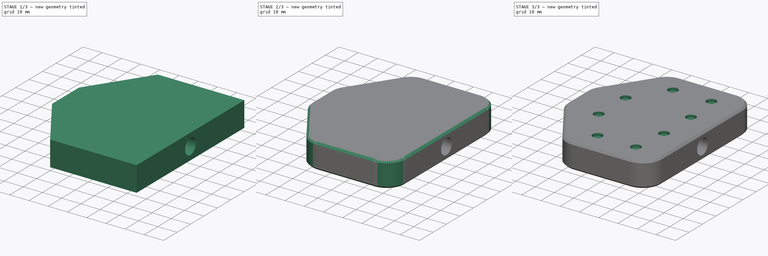
[diagram: build sequence overview — one tinted view per stage of 3, left to right]
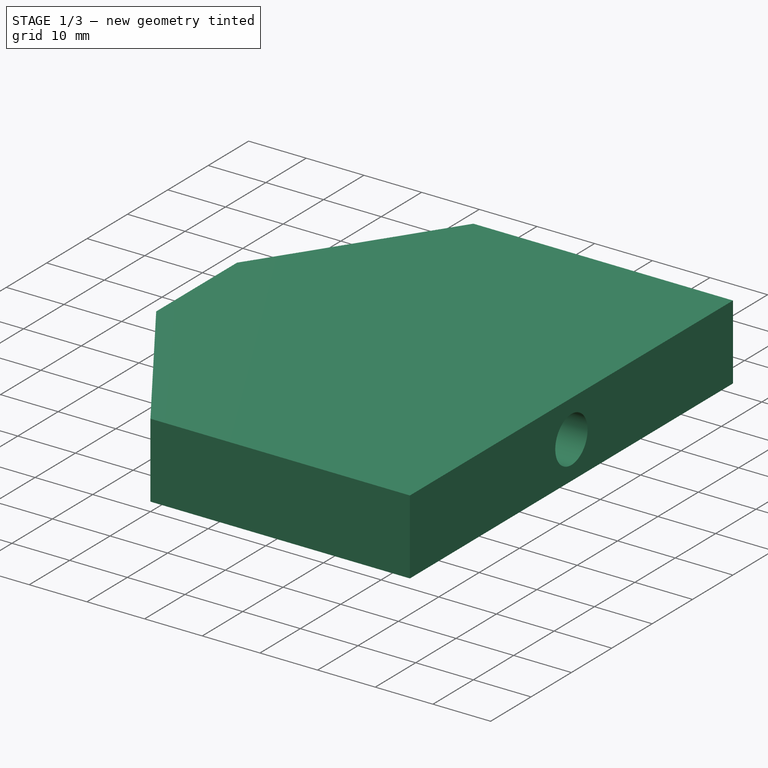
[diagram: stage 1 of 3 — iso view after this stage's code; geometry added in this stage tinted green]
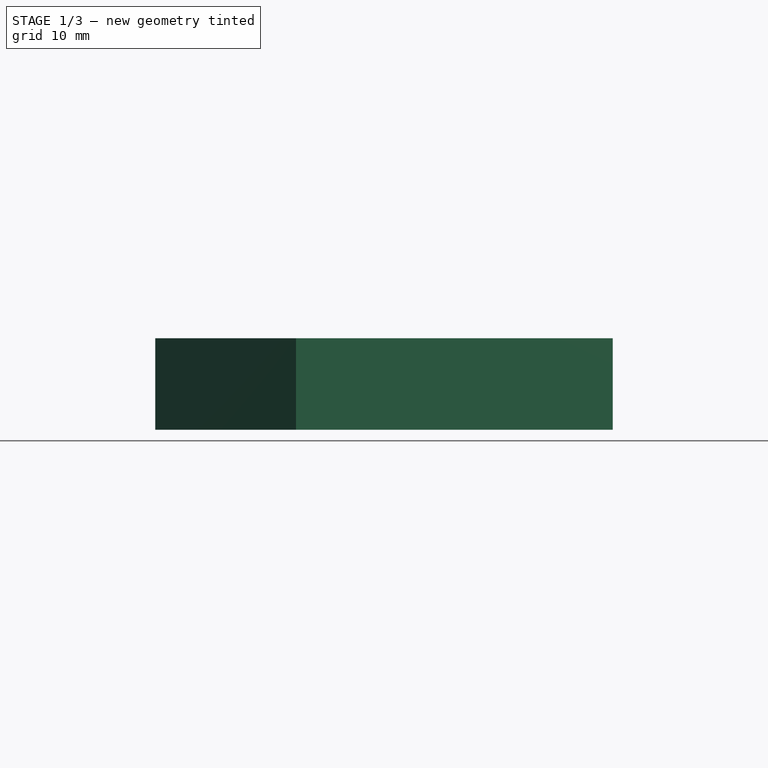
[diagram: stage 1 of 3 — front view after this stage's code; geometry added in this stage tinted green]
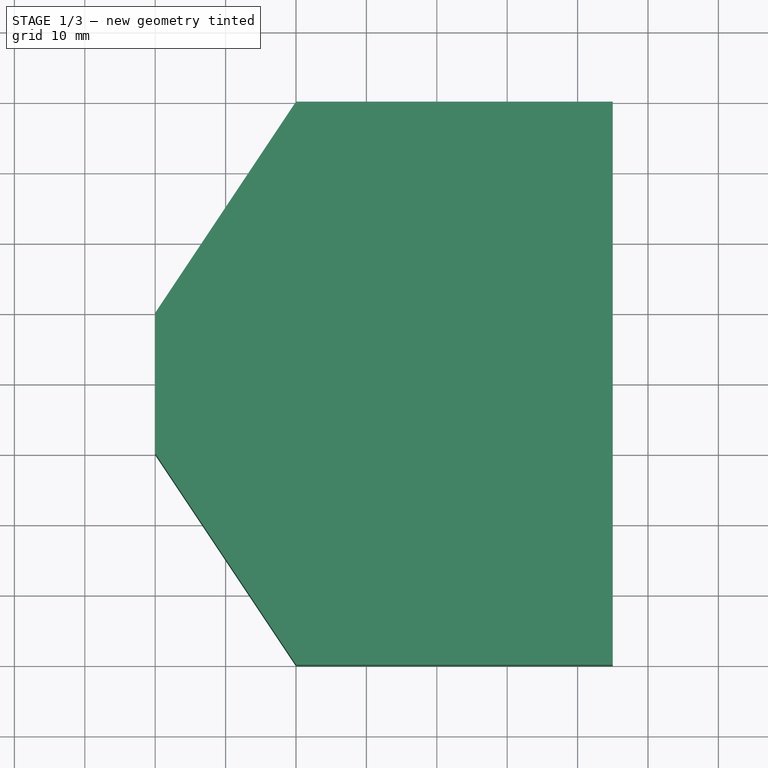
[diagram: stage 1 of 3 — top view after this stage's code; geometry added in this stage tinted green]
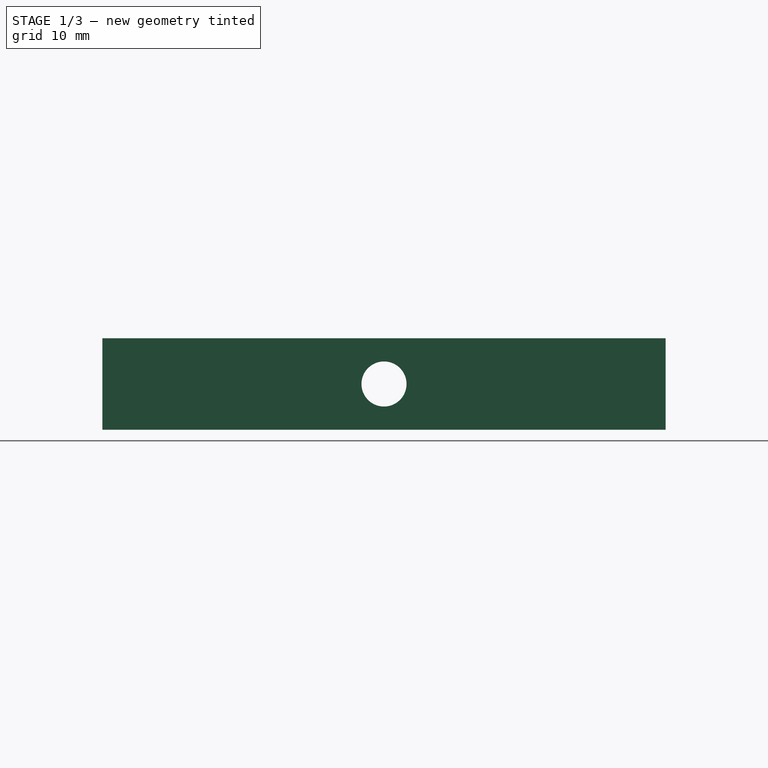
[diagram: stage 1 of 3 — right view after this stage's code; geometry added in this stage tinted green]
FCSTD DOCUMENT  (FreeCAD 0.16R)
Label: Mk1_2
License: All rights reserved
LicenseURL: http://en.wikipedia.org/wiki/All_rights_reserved
objects: Sketcher::SketchObject×6, PartDesign::Pocket×5, PartDesign::Pad×1, PartDesign::Fillet×1, PartDesign::Chamfer×1
note: 20 computed .brp shape members not serialized (recipe doc carries the construction recipe); baked Part::Feature solids carry a one-line shape summary decoded from their .brp

FEATURE [Sketcher::SketchObject] Sketch
  sketch-geometry (7):
    g0: LineSegment StartX=25 StartY=40 StartZ=0 EndX=25 EndY=-40 EndZ=0
    g1: LineSegment StartX=-40 StartY=10 StartZ=0 EndX=-20 EndY=40 EndZ=0
    g2: LineSegment StartX=-20 StartY=40 StartZ=0 EndX=25 EndY=40 EndZ=0
    g3: LineSegment StartX=25 StartY=40 StartZ=0 EndX=25 EndY=-40 EndZ=0
    g4: LineSegment StartX=25 StartY=-40 StartZ=0 EndX=-20 EndY=-40 EndZ=0
    g5: LineSegment StartX=-20 StartY=-40 StartZ=0 EndX=-40 EndY=-10 EndZ=0
    g6: LineSegment StartX=-40 StartY=-10 StartZ=0 EndX=-40 EndY=10 EndZ=0
  constraints (19):
    c: Coincident(g1,g2)
    c: Horizontal(g2)
    c: Coincident(g2,g3)
    c: Coincident(g3,g0)
    c: Vertical(g3)
    c: Coincident(g3,g4)
    c: Horizontal(g4)
    c: Coincident(g4,g5)
    c: Coincident(g5,g6)
    c: Coincident(g0,g2)
    c: Coincident(g1,g6)
    c: Distance(g-1,g0) = 25
    c: DistanceX(g1,g-1) = 20
    c: DistanceX(g1,g-1) = 40
    c: Vertical(g6)
    c: Symmetric(g1,g5,g-1)
    c: Symmetric(g4,g1,g-1)
    c: DistanceY(g1) = 10
    c: Distance(g0) = 80
FEATURE [PartDesign::Pad] Pad  label="Body"
  Length = 13
  Length2 = 100
  Sketch = -> Sketch
  Type = 0
FEATURE [Sketcher::SketchObject] Sketch001
  ExternalGeometry = -> [Pad]
  Placement = pos=(25,0,0) rot=(0.57735,0.57735,0.57735;2.0944rad)
  Support = -> Pad [Face1]
  sketch-geometry (1):
    g0: Circle CenterX=0 CenterY=6.5 CenterZ=0 NormalX=0 NormalY=0 NormalZ=1 Radius=3.2
  constraints (2):
    c: Symmetric(g-3,g-4,g0)
    c: Radius(g0) = 3.2
FEATURE [PartDesign::Pocket] Pocket  label="6.4through"
  Length = 20
  Sketch = -> Sketch001
  Type = 1
FEATURE [Sketcher::SketchObject] Sketch002
  ExternalGeometry = -> [Pocket]
  Placement = pos=(25,0,0) rot=(0.57735,0.57735,0.57735;2.0944rad)
  Support = -> Pocket [Face1]
  sketch-geometry (1):
    g0: Circle CenterX=0 CenterY=6.5 CenterZ=0 NormalX=0 NormalY=0 NormalZ=1 Radius=4
  constraints (2):
    c: Symmetric(g-4,g-3,g0)
    c: Radius(g0) = 4
FEATURE [PartDesign::Pocket] Pocket001  label="8mmBy15mm"
  Length = 15
  Sketch = -> Sketch002
  Type = 0
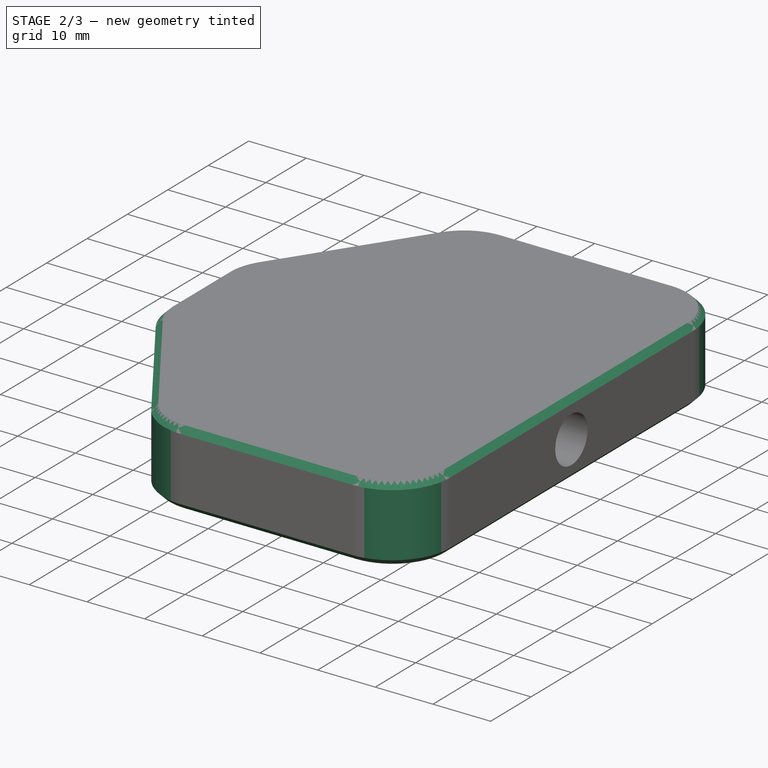
[diagram: stage 2 of 3 — iso view after this stage's code; geometry added in this stage tinted green]
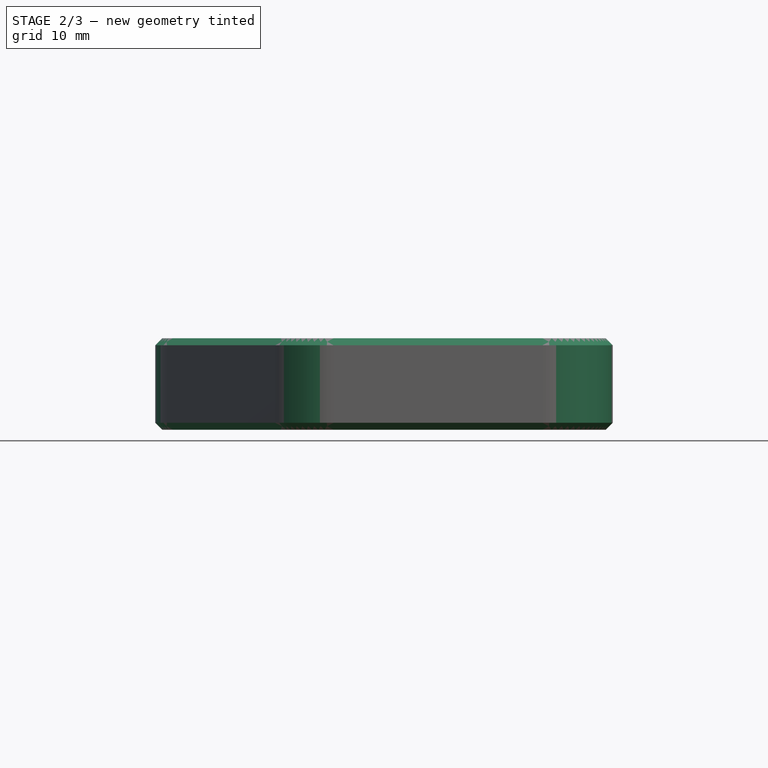
[diagram: stage 2 of 3 — front view after this stage's code; geometry added in this stage tinted green]
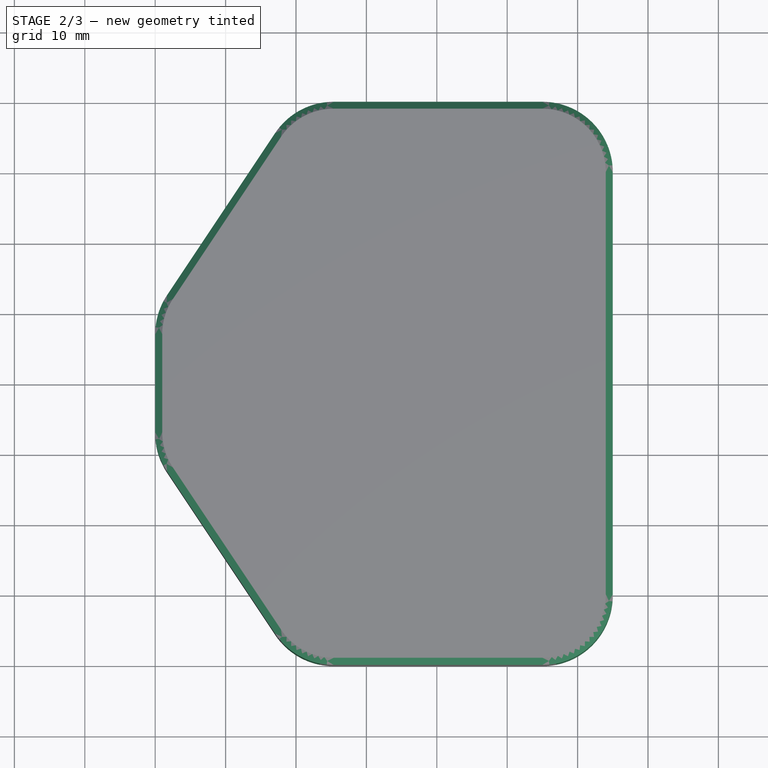
[diagram: stage 2 of 3 — top view after this stage's code; geometry added in this stage tinted green]
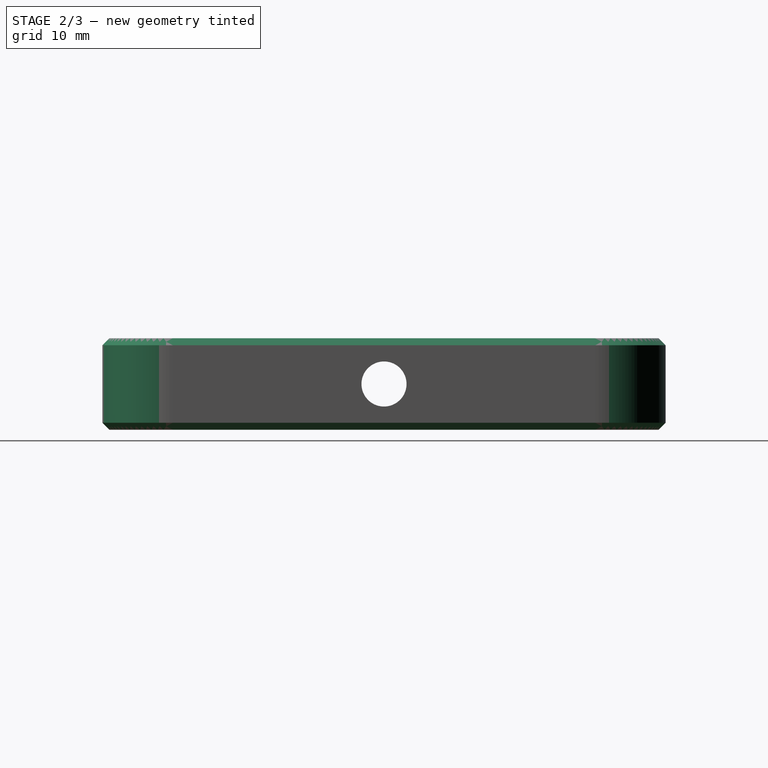
[diagram: stage 2 of 3 — right view after this stage's code; geometry added in this stage tinted green]
FEATURE [PartDesign::Fillet] Fillet
  Base = -> Pocket001 [Edge4,Edge17,Edge21,Edge20,Edge6,Edge1]
  Radius = 10
FEATURE [PartDesign::Chamfer] Chamfer
  Base = -> Fillet [Edge1,Edge6,Edge7,Edge8,Edge9,Edge10,Edge11,Edge12,Edge13,Edge14,Edge15,Edge16,Edge4,Edge18,Edge20,Edge21,Edge22,Edge23,Edge24,Edge25,Edge26,Edge27,Edge28,Edge29]
  Size = 1
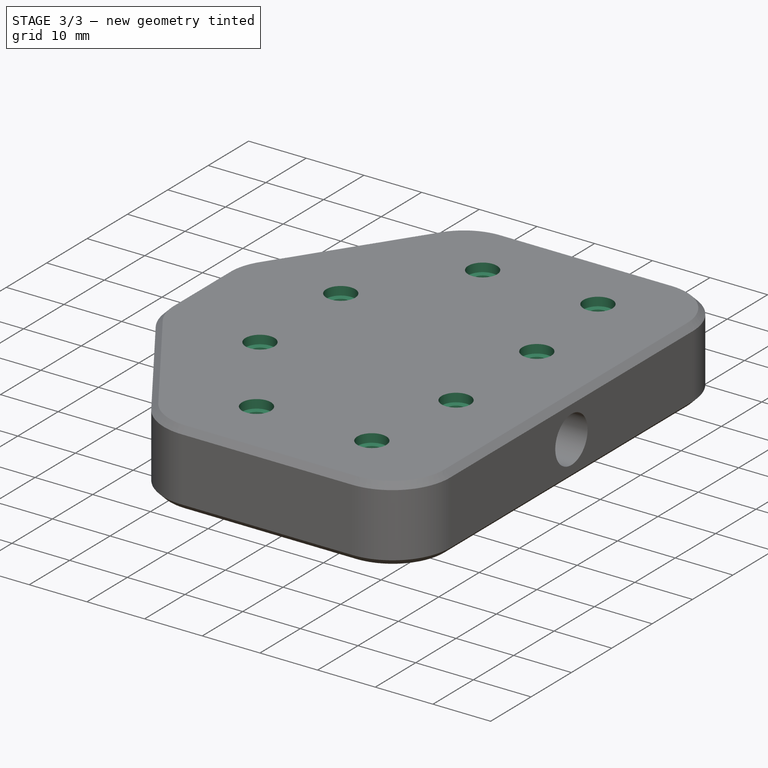
[diagram: stage 3 of 3 — iso view after this stage's code; geometry added in this stage tinted green]
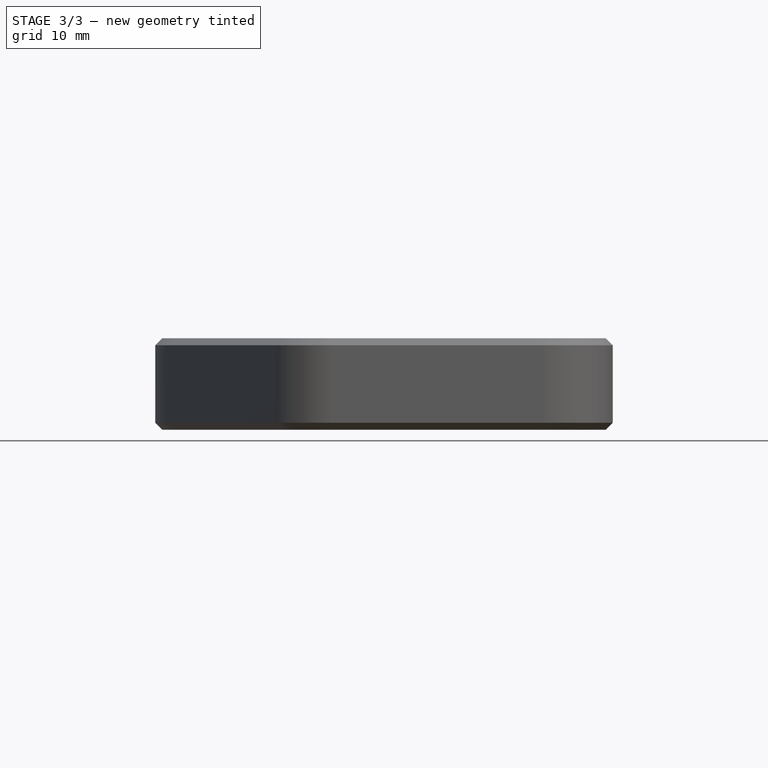
[diagram: stage 3 of 3 — front view after this stage's code; geometry added in this stage tinted green]
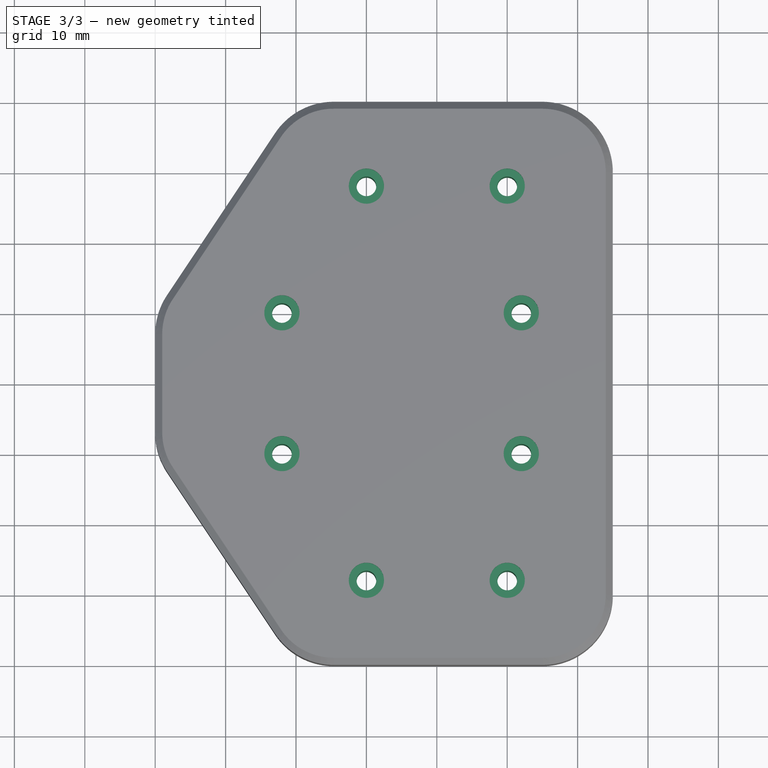
[diagram: stage 3 of 3 — top view after this stage's code; geometry added in this stage tinted green]
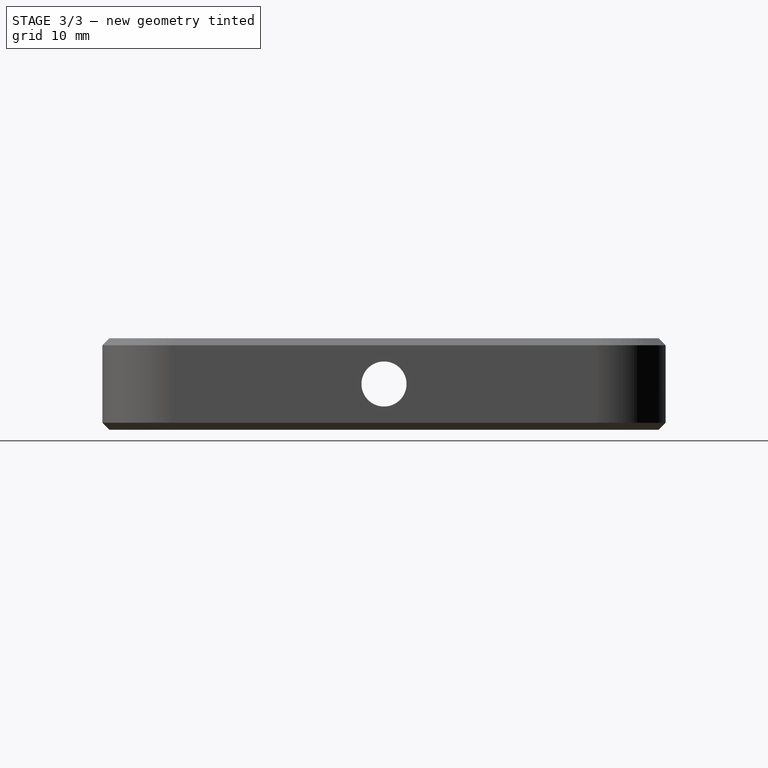
[diagram: stage 3 of 3 — right view after this stage's code; geometry added in this stage tinted green]
FEATURE [Sketcher::SketchObject] Sketch003
  ExternalGeometry = -> [Chamfer]
  Placement = pos=(-40,0,0) rot=(0.57735,-0.57735,-0.57735;2.0944rad)
  Support = -> Chamfer [Face41]
  sketch-geometry (1):
    g0: Circle CenterX=0 CenterY=6.5 CenterZ=0 NormalX=0 NormalY=0 NormalZ=1 Radius=4.5
  constraints (2):
    c: Coincident(g0,g-3)
    c: Radius(g0) = 4.5
FEATURE [PartDesign::Pocket] Pocket002  label="9mmBy15mmEnd"
  Length = 15
  Sketch = -> Sketch003
  Type = 0
FEATURE [Sketcher::SketchObject] Sketch004
  Placement = pos=(0,0,13) rot=(0,0,1;0rad)
  Support = -> Pocket002 [Face12]
  sketch-geometry (8):
    g0: Circle CenterX=-10 CenterY=28 CenterZ=0 NormalX=0 NormalY=0 NormalZ=1 Radius=1.4
    g1: Circle CenterX=10 CenterY=28 CenterZ=0 NormalX=0 NormalY=0 NormalZ=1 Radius=1.4
    g2: Circle CenterX=-10 CenterY=-28 CenterZ=0 NormalX=0 NormalY=0 NormalZ=1 Radius=1.4
    g3: Circle CenterX=10 CenterY=-28 CenterZ=0 NormalX=0 NormalY=0 NormalZ=1 Radius=1.4
    g4: Circle CenterX=-22 CenterY=-10 CenterZ=0 NormalX=0 NormalY=0 NormalZ=1 Radius=1.4
    g5: Circle CenterX=12 CenterY=-10 CenterZ=0 NormalX=0 NormalY=0 NormalZ=1 Radius=1.4
    g6: Circle CenterX=12 CenterY=10 CenterZ=0 NormalX=0 NormalY=0 NormalZ=1 Radius=1.4
    g7: Circle CenterX=-22 CenterY=10 CenterZ=0 NormalX=0 NormalY=0 NormalZ=1 Radius=1.4
  constraints (13):
    c: Radius(g0) = 1.4
    c: Equal(g0, g1-g7) x7
    c: Symmetric(g6,g5,g-1)
    c: Symmetric(g4,g7,g-1)
    c: Symmetric(g1,g3,g-1)
    c: Symmetric(g1,g0,g-2)
    c: Symmetric(g3,g2,g-2)
    c: DistanceY(g7) = 10
    c: DistanceY(g6) = 10
    c: DistanceX(g6) = 12
    c: DistanceX(g7) = -22
    c: DistanceY(g1) = 28
    c: DistanceX(g1) = 10
FEATURE [PartDesign::Pocket] Pocket003  label="ScrewHolesThrough"
  Length = 5
  Sketch = -> Sketch004
  Type = 1
FEATURE [Sketcher::SketchObject] Sketch005
  ExternalGeometry = -> [Pocket003]
  Placement = pos=(0,0,13) rot=(0,0,1;0rad)
  Support = -> Pocket003 [Face12]
  sketch-geometry (8):
    g0: Circle CenterX=-10 CenterY=28 CenterZ=0 NormalX=0 NormalY=0 NormalZ=1 Radius=2.5
    g1: Circle CenterX=10 CenterY=28 CenterZ=0 NormalX=0 NormalY=0 NormalZ=1 Radius=2.5
    g2: Circle CenterX=12 CenterY=10 CenterZ=0 NormalX=0 NormalY=0 NormalZ=1 Radius=2.5
    g3: Circle CenterX=-22 CenterY=10 CenterZ=0 NormalX=0 NormalY=0 NormalZ=1 Radius=2.5
    g4: Circle CenterX=-22 CenterY=-10 CenterZ=0 NormalX=0 NormalY=0 NormalZ=1 Radius=2.5
    g5: Circle CenterX=-10 CenterY=-28 CenterZ=0 NormalX=0 NormalY=0 NormalZ=1 Radius=2.5
    g6: Circle CenterX=10 CenterY=-28 CenterZ=0 NormalX=0 NormalY=0 NormalZ=1 Radius=2.5
    g7: Circle CenterX=12 CenterY=-10 CenterZ=0 NormalX=0 NormalY=0 NormalZ=1 Radius=2.5
  constraints (16):
    c: Radius(g0) = 2.5
    c: Equal(g0,g1)
    c: Equal(g0,g3)
    c: Equal(g0,g4)
    c: Equal(g0,g2)
    c: Equal(g0,g5)
    c: Equal(g0,g6)
    c: Equal(g0,g7)
    c: Coincident(g0,g-4)
    c: Coincident(g1,g-3)
    c: Coincident(g3,g-5)
    c: Coincident(g2,g-6)
    c: Coincident(g4,g-8)
    c: Coincident(g5,g-9)
    c: Coincident(g6,g-10)
    c: Coincident(g7,g-7)
FEATURE [PartDesign::Pocket] Pocket004  label="CounterSinks"
  Length = 1.5
  Sketch = -> Sketch005
  Type = 0
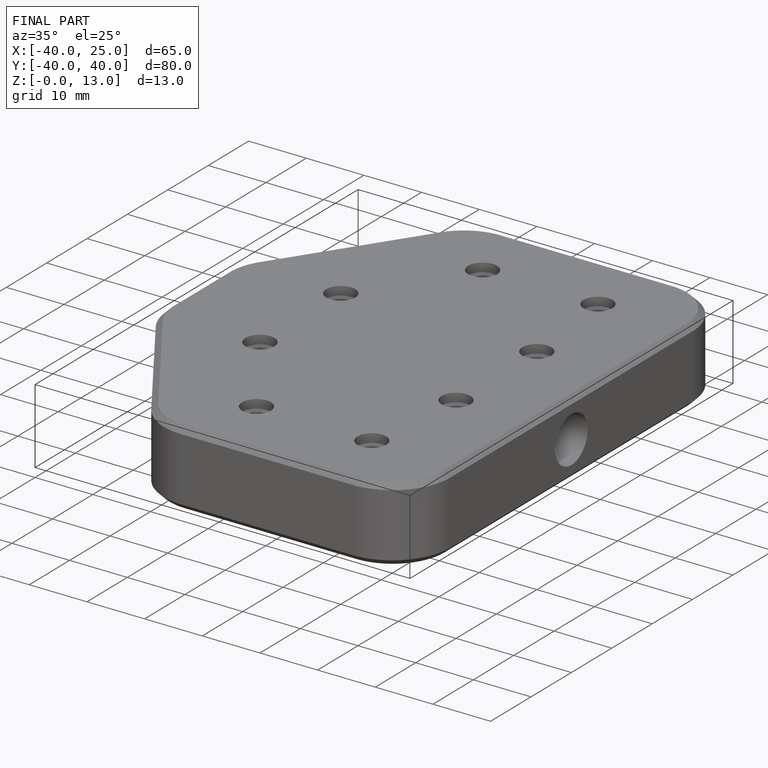
[diagram: finished part — iso view with bounding-box wireframe]
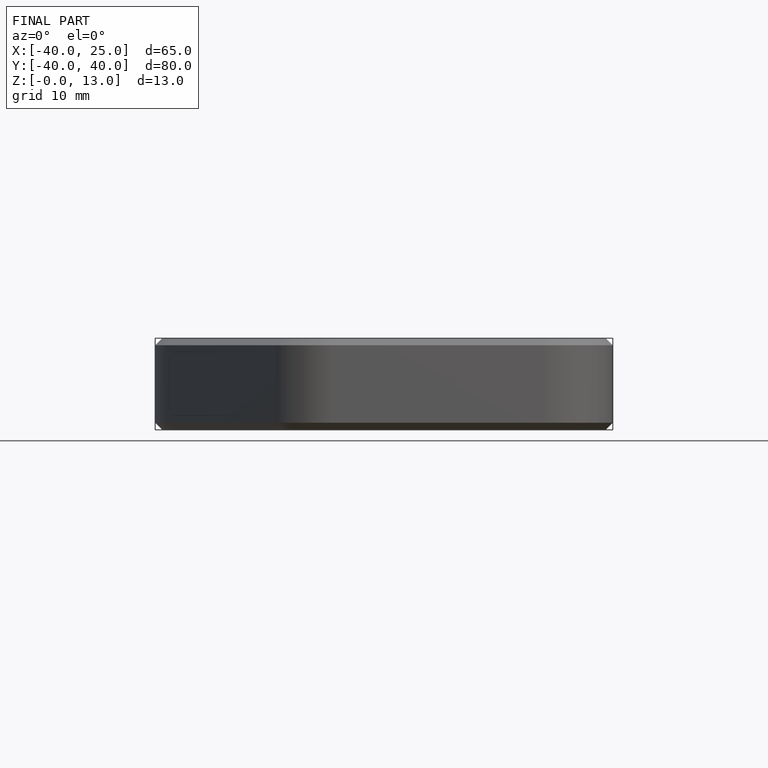
[diagram: finished part — front view with bounding-box wireframe]
